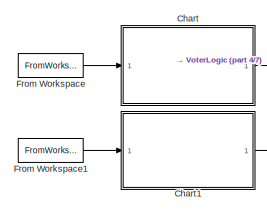
[diagram: root canvas - part 1/7, top left region]
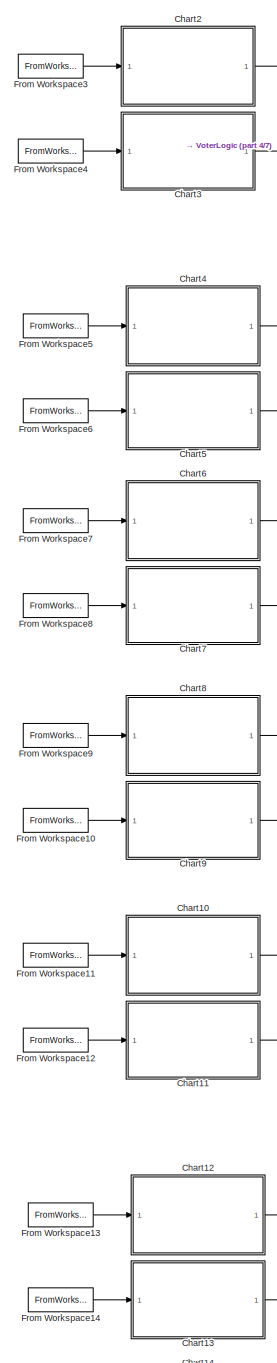
[diagram: root canvas - part 2/7, top left region]
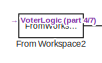
[diagram: root canvas - part 3/7, top center region]
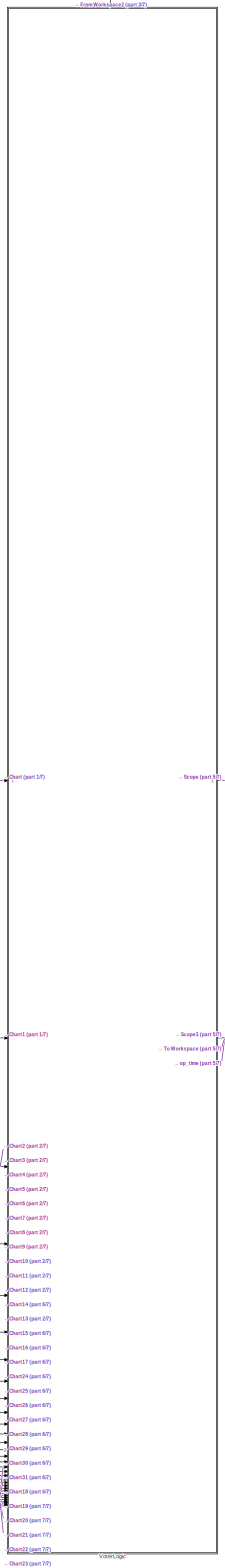
[diagram: root canvas - part 4/7, center side, full height]
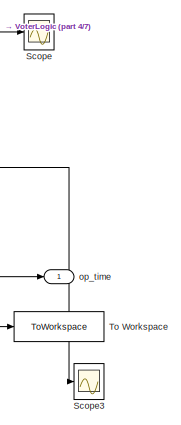
[diagram: root canvas - part 5/7, top right region]
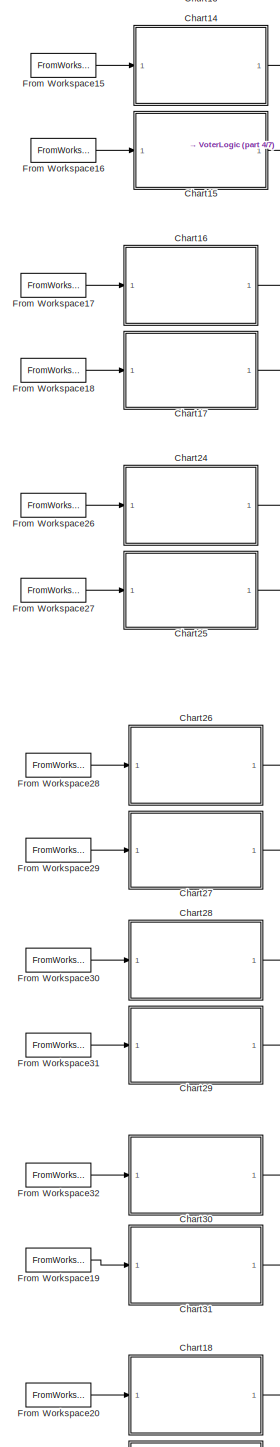
[diagram: root canvas - part 6/7, middle left region]
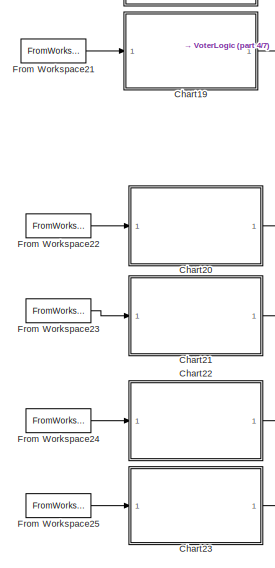
[diagram: root canvas - part 7/7, bottom left region]
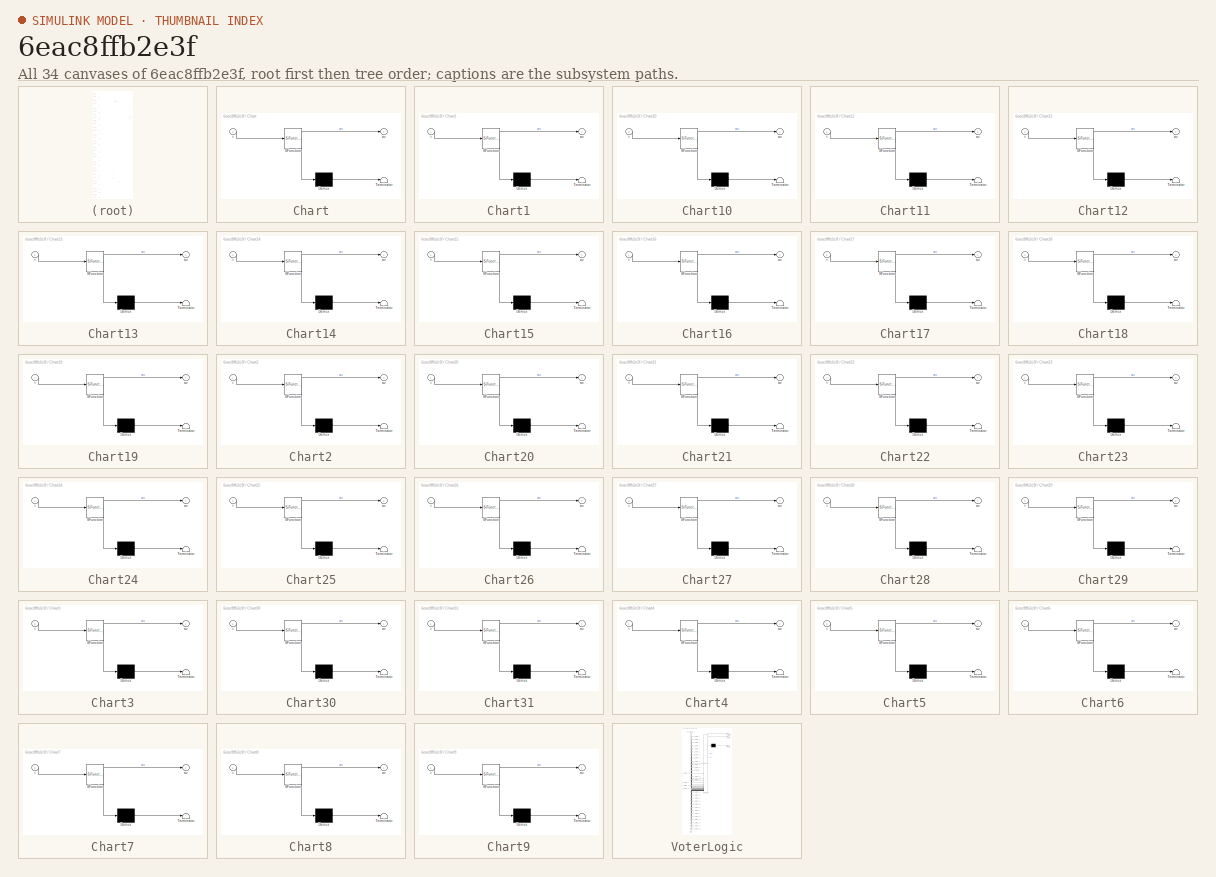
[diagram: thumbnail index - all 34 canvases of the model, root first then tree order]
MODEL slx_6eac8ffb2e3f
KIND model
CONFIG AbsTol = auto
CONFIG EnableMultiTasking = off
CONFIG FixedStep = auto
CONFIG MaxStep = auto
CONFIG MinStep = auto
CONFIG RelTol = 1e-3
CONFIG SampleTimeConstraint = Unconstrained
CONFIG SolverName = VariableStepAuto
CONFIG StartTime = 0.0
CONFIG StopTime = 100.0
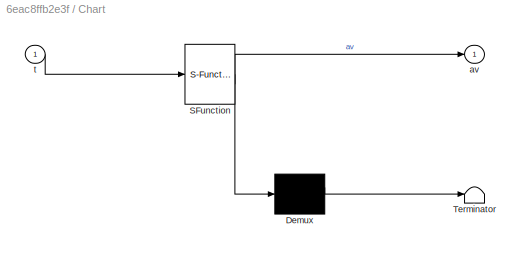
BLOCK [SubSystem] Chart
  ErrorFcn = Stateflow.Translate.translate
  PermitHierarchicalResolution = ExplicitOnly
  SFBlockType = Chart
  TreatAsAtomicUnit = on
BLOCK [Demux] Chart/ Demux 
  Outputs = 1
BLOCK [S-Function] Chart/ SFunction 
  EnableBusSupport = on
  FunctionName = sf_sfun
  PortCounts = [1 2]
  SFcnIsStateOwnerBlock = off
  SFunctionDeploymentMode = off
  Tag = Stateflow S-Function 1
BLOCK [Terminator] Chart/ Terminator 
BLOCK [Outport] Chart/av
BLOCK [Inport] Chart/t
BLOCK [SubSystem] Chart1
  ErrorFcn = Stateflow.Translate.translate
  PermitHierarchicalResolution = ExplicitOnly
  SFBlockType = Chart
  TreatAsAtomicUnit = on
BLOCK [Demux] Chart1/ Demux 
  Outputs = 1
BLOCK [S-Function] Chart1/ SFunction 
  EnableBusSupport = on
  FunctionName = sf_sfun
  PortCounts = [1 2]
  SFcnIsStateOwnerBlock = off
  SFunctionDeploymentMode = off
  Tag = Stateflow S-Function 2
BLOCK [Terminator] Chart1/ Terminator 
BLOCK [Outport] Chart1/av
BLOCK [Inport] Chart1/t
BLOCK [SubSystem] Chart10
  ErrorFcn = Stateflow.Translate.translate
  PermitHierarchicalResolution = ExplicitOnly
  SFBlockType = Chart
  TreatAsAtomicUnit = on
BLOCK [Demux] Chart10/ Demux 
  Outputs = 1
BLOCK [S-Function] Chart10/ SFunction 
  EnableBusSupport = on
  FunctionName = sf_sfun
  PortCounts = [1 2]
  SFcnIsStateOwnerBlock = off
  SFunctionDeploymentMode = off
  Tag = Stateflow S-Function 10
BLOCK [Terminator] Chart10/ Terminator 
BLOCK [Outport] Chart10/av
BLOCK [Inport] Chart10/t
BLOCK [SubSystem] Chart11
  ErrorFcn = Stateflow.Translate.translate
  PermitHierarchicalResolution = ExplicitOnly
  SFBlockType = Chart
  TreatAsAtomicUnit = on
BLOCK [Demux] Chart11/ Demux 
  Outputs = 1
BLOCK [S-Function] Chart11/ SFunction 
  EnableBusSupport = on
  FunctionName = sf_sfun
  PortCounts = [1 2]
  SFcnIsStateOwnerBlock = off
  SFunctionDeploymentMode = off
  Tag = Stateflow S-Function 11
BLOCK [Terminator] Chart11/ Terminator 
BLOCK [Outport] Chart11/av
BLOCK [Inport] Chart11/t
BLOCK [SubSystem] Chart12
  ErrorFcn = Stateflow.Translate.translate
  PermitHierarchicalResolution = ExplicitOnly
  SFBlockType = Chart
  TreatAsAtomicUnit = on
BLOCK [Demux] Chart12/ Demux 
  Outputs = 1
BLOCK [S-Function] Chart12/ SFunction 
  EnableBusSupport = on
  FunctionName = sf_sfun
  PortCounts = [1 2]
  SFcnIsStateOwnerBlock = off
  SFunctionDeploymentMode = off
  Tag = Stateflow S-Function 12
BLOCK [Terminator] Chart12/ Terminator 
BLOCK [Outport] Chart12/av
BLOCK [Inport] Chart12/t
BLOCK [SubSystem] Chart13
  ErrorFcn = Stateflow.Translate.translate
  PermitHierarchicalResolution = ExplicitOnly
  SFBlockType = Chart
  TreatAsAtomicUnit = on
BLOCK [Demux] Chart13/ Demux 
  Outputs = 1
BLOCK [S-Function] Chart13/ SFunction 
  EnableBusSupport = on
  FunctionName = sf_sfun
  PortCounts = [1 2]
  SFcnIsStateOwnerBlock = off
  SFunctionDeploymentMode = off
  Tag = Stateflow S-Function 13
BLOCK [Terminator] Chart13/ Terminator 
BLOCK [Outport] Chart13/av
BLOCK [Inport] Chart13/t
BLOCK [SubSystem] Chart14
  ErrorFcn = Stateflow.Translate.translate
  PermitHierarchicalResolution = ExplicitOnly
  SFBlockType = Chart
  TreatAsAtomicUnit = on
BLOCK [Demux] Chart14/ Demux 
  Outputs = 1
BLOCK [S-Function] Chart14/ SFunction 
  EnableBusSupport = on
  FunctionName = sf_sfun
  PortCounts = [1 2]
  SFcnIsStateOwnerBlock = off
  SFunctionDeploymentMode = off
  Tag = Stateflow S-Function 14
BLOCK [Terminator] Chart14/ Terminator 
BLOCK [Outport] Chart14/av
BLOCK [Inport] Chart14/t
BLOCK [SubSystem] Chart15
  ErrorFcn = Stateflow.Translate.translate
  PermitHierarchicalResolution = ExplicitOnly
  SFBlockType = Chart
  TreatAsAtomicUnit = on
BLOCK [Demux] Chart15/ Demux 
  Outputs = 1
BLOCK [S-Function] Chart15/ SFunction 
  EnableBusSupport = on
  FunctionName = sf_sfun
  PortCounts = [1 2]
  SFcnIsStateOwnerBlock = off
  SFunctionDeploymentMode = off
  Tag = Stateflow S-Function 15
BLOCK [Terminator] Chart15/ Terminator 
BLOCK [Outport] Chart15/av
BLOCK [Inport] Chart15/t
BLOCK [SubSystem] Chart16
  ErrorFcn = Stateflow.Translate.translate
  PermitHierarchicalResolution = ExplicitOnly
  SFBlockType = Chart
  TreatAsAtomicUnit = on
BLOCK [Demux] Chart16/ Demux 
  Outputs = 1
BLOCK [S-Function] Chart16/ SFunction 
  EnableBusSupport = on
  FunctionName = sf_sfun
  PortCounts = [1 2]
  SFcnIsStateOwnerBlock = off
  SFunctionDeploymentMode = off
  Tag = Stateflow S-Function 18
BLOCK [Terminator] Chart16/ Terminator 
BLOCK [Outport] Chart16/av
BLOCK [Inport] Chart16/t
BLOCK [SubSystem] Chart17
  ErrorFcn = Stateflow.Translate.translate
  PermitHierarchicalResolution = ExplicitOnly
  SFBlockType = Chart
  TreatAsAtomicUnit = on
BLOCK [Demux] Chart17/ Demux 
  Outputs = 1
BLOCK [S-Function] Chart17/ SFunction 
  EnableBusSupport = on
  FunctionName = sf_sfun
  PortCounts = [1 2]
  SFcnIsStateOwnerBlock = off
  SFunctionDeploymentMode = off
  Tag = Stateflow S-Function 19
BLOCK [Terminator] Chart17/ Terminator 
BLOCK [Outport] Chart17/av
BLOCK [Inport] Chart17/t
BLOCK [SubSystem] Chart18
  ErrorFcn = Stateflow.Translate.translate
  PermitHierarchicalResolution = ExplicitOnly
  SFBlockType = Chart
  TreatAsAtomicUnit = on
BLOCK [Demux] Chart18/ Demux 
  Outputs = 1
BLOCK [S-Function] Chart18/ SFunction 
  EnableBusSupport = on
  FunctionName = sf_sfun
  PortCounts = [1 2]
  SFcnIsStateOwnerBlock = off
  SFunctionDeploymentMode = off
  Tag = Stateflow S-Function 20
BLOCK [Terminator] Chart18/ Terminator 
BLOCK [Outport] Chart18/av
BLOCK [Inport] Chart18/t
BLOCK [SubSystem] Chart19
  ErrorFcn = Stateflow.Translate.translate
  PermitHierarchicalResolution = ExplicitOnly
  SFBlockType = Chart
  TreatAsAtomicUnit = on
BLOCK [Demux] Chart19/ Demux 
  Outputs = 1
BLOCK [S-Function] Chart19/ SFunction 
  EnableBusSupport = on
  FunctionName = sf_sfun
  PortCounts = [1 2]
  SFcnIsStateOwnerBlock = off
  SFunctionDeploymentMode = off
  Tag = Stateflow S-Function 21
BLOCK [Terminator] Chart19/ Terminator 
BLOCK [Outport] Chart19/av
BLOCK [Inport] Chart19/t
BLOCK [SubSystem] Chart2
  ErrorFcn = Stateflow.Translate.translate
  PermitHierarchicalResolution = ExplicitOnly
  SFBlockType = Chart
  TreatAsAtomicUnit = on
BLOCK [Demux] Chart2/ Demux 
  Outputs = 1
BLOCK [S-Function] Chart2/ SFunction 
  EnableBusSupport = on
  FunctionName = sf_sfun
  PortCounts = [1 2]
  SFcnIsStateOwnerBlock = off
  SFunctionDeploymentMode = off
  Tag = Stateflow S-Function 4
BLOCK [Terminator] Chart2/ Terminator 
BLOCK [Outport] Chart2/av
BLOCK [Inport] Chart2/t
BLOCK [SubSystem] Chart20
  ErrorFcn = Stateflow.Translate.translate
  PermitHierarchicalResolution = ExplicitOnly
  SFBlockType = Chart
  TreatAsAtomicUnit = on
BLOCK [Demux] Chart20/ Demux 
  Outputs = 1
BLOCK [S-Function] Chart20/ SFunction 
  EnableBusSupport = on
  FunctionName = sf_sfun
  PortCounts = [1 2]
  SFcnIsStateOwnerBlock = off
  SFunctionDeploymentMode = off
  Tag = Stateflow S-Function 22
BLOCK [Terminator] Chart20/ Terminator 
BLOCK [Outport] Chart20/av
BLOCK [Inport] Chart20/t
BLOCK [SubSystem] Chart21
  ErrorFcn = Stateflow.Translate.translate
  PermitHierarchicalResolution = ExplicitOnly
  SFBlockType = Chart
  TreatAsAtomicUnit = on
BLOCK [Demux] Chart21/ Demux 
  Outputs = 1
BLOCK [S-Function] Chart21/ SFunction 
  EnableBusSupport = on
  FunctionName = sf_sfun
  PortCounts = [1 2]
  SFcnIsStateOwnerBlock = off
  SFunctionDeploymentMode = off
  Tag = Stateflow S-Function 23
BLOCK [Terminator] Chart21/ Terminator 
BLOCK [Outport] Chart21/av
BLOCK [Inport] Chart21/t
BLOCK [SubSystem] Chart22
  ErrorFcn = Stateflow.Translate.translate
  PermitHierarchicalResolution = ExplicitOnly
  SFBlockType = Chart
  TreatAsAtomicUnit = on
BLOCK [Demux] Chart22/ Demux 
  Outputs = 1
BLOCK [S-Function] Chart22/ SFunction 
  EnableBusSupport = on
  FunctionName = sf_sfun
  PortCounts = [1 2]
  SFcnIsStateOwnerBlock = off
  SFunctionDeploymentMode = off
  Tag = Stateflow S-Function 24
BLOCK [Terminator] Chart22/ Terminator 
BLOCK [Outport] Chart22/av
BLOCK [Inport] Chart22/t
BLOCK [SubSystem] Chart23
  ErrorFcn = Stateflow.Translate.translate
  PermitHierarchicalResolution = ExplicitOnly
  SFBlockType = Chart
  TreatAsAtomicUnit = on
BLOCK [Demux] Chart23/ Demux 
  Outputs = 1
BLOCK [S-Function] Chart23/ SFunction 
  EnableBusSupport = on
  FunctionName = sf_sfun
  PortCounts = [1 2]
  SFcnIsStateOwnerBlock = off
  SFunctionDeploymentMode = off
  Tag = Stateflow S-Function 25
BLOCK [Terminator] Chart23/ Terminator 
BLOCK [Outport] Chart23/av
BLOCK [Inport] Chart23/t
BLOCK [SubSystem] Chart24
  ErrorFcn = Stateflow.Translate.translate
  PermitHierarchicalResolution = ExplicitOnly
  SFBlockType = Chart
  TreatAsAtomicUnit = on
BLOCK [Demux] Chart24/ Demux 
  Outputs = 1
BLOCK [S-Function] Chart24/ SFunction 
  EnableBusSupport = on
  FunctionName = sf_sfun
  PortCounts = [1 2]
  SFcnIsStateOwnerBlock = off
  SFunctionDeploymentMode = off
  Tag = Stateflow S-Function 26
BLOCK [Terminator] Chart24/ Terminator 
BLOCK [Outport] Chart24/av
BLOCK [Inport] Chart24/t
BLOCK [SubSystem] Chart25
  ErrorFcn = Stateflow.Translate.translate
  PermitHierarchicalResolution = ExplicitOnly
  SFBlockType = Chart
  TreatAsAtomicUnit = on
BLOCK [Demux] Chart25/ Demux 
  Outputs = 1
BLOCK [S-Function] Chart25/ SFunction 
  EnableBusSupport = on
  FunctionName = sf_sfun
  PortCounts = [1 2]
  SFcnIsStateOwnerBlock = off
  SFunctionDeploymentMode = off
  Tag = Stateflow S-Function 27
BLOCK [Terminator] Chart25/ Terminator 
BLOCK [Outport] Chart25/av
BLOCK [Inport] Chart25/t
BLOCK [SubSystem] Chart26
  ErrorFcn = Stateflow.Translate.translate
  PermitHierarchicalResolution = ExplicitOnly
  SFBlockType = Chart
  TreatAsAtomicUnit = on
BLOCK [Demux] Chart26/ Demux 
  Outputs = 1
BLOCK [S-Function] Chart26/ SFunction 
  EnableBusSupport = on
  FunctionName = sf_sfun
  PortCounts = [1 2]
  SFcnIsStateOwnerBlock = off
  SFunctionDeploymentMode = off
  Tag = Stateflow S-Function 28
BLOCK [Terminator] Chart26/ Terminator 
BLOCK [Outport] Chart26/av
BLOCK [Inport] Chart26/t
BLOCK [SubSystem] Chart27
  ErrorFcn = Stateflow.Translate.translate
  PermitHierarchicalResolution = ExplicitOnly
  SFBlockType = Chart
  TreatAsAtomicUnit = on
BLOCK [Demux] Chart27/ Demux 
  Outputs = 1
BLOCK [S-Function] Chart27/ SFunction 
  EnableBusSupport = on
  FunctionName = sf_sfun
  PortCounts = [1 2]
  SFcnIsStateOwnerBlock = off
  SFunctionDeploymentMode = off
  Tag = Stateflow S-Function 29
BLOCK [Terminator] Chart27/ Terminator 
BLOCK [Outport] Chart27/av
BLOCK [Inport] Chart27/t
BLOCK [SubSystem] Chart28
  ErrorFcn = Stateflow.Translate.translate
  PermitHierarchicalResolution = ExplicitOnly
  SFBlockType = Chart
  TreatAsAtomicUnit = on
BLOCK [Demux] Chart28/ Demux 
  Outputs = 1
BLOCK [S-Function] Chart28/ SFunction 
  EnableBusSupport = on
  FunctionName = sf_sfun
  PortCounts = [1 2]
  SFcnIsStateOwnerBlock = off
  SFunctionDeploymentMode = off
  Tag = Stateflow S-Function 30
BLOCK [Terminator] Chart28/ Terminator 
BLOCK [Outport] Chart28/av
BLOCK [Inport] Chart28/t
BLOCK [SubSystem] Chart29
  ErrorFcn = Stateflow.Translate.translate
  PermitHierarchicalResolution = ExplicitOnly
  SFBlockType = Chart
  TreatAsAtomicUnit = on
BLOCK [Demux] Chart29/ Demux 
  Outputs = 1
BLOCK [S-Function] Chart29/ SFunction 
  EnableBusSupport = on
  FunctionName = sf_sfun
  PortCounts = [1 2]
  SFcnIsStateOwnerBlock = off
  SFunctionDeploymentMode = off
  Tag = Stateflow S-Function 31
BLOCK [Terminator] Chart29/ Terminator 
BLOCK [Outport] Chart29/av
BLOCK [Inport] Chart29/t
BLOCK [SubSystem] Chart3
  ErrorFcn = Stateflow.Translate.translate
  PermitHierarchicalResolution = ExplicitOnly
  SFBlockType = Chart
  TreatAsAtomicUnit = on
BLOCK [Demux] Chart3/ Demux 
  Outputs = 1
BLOCK [S-Function] Chart3/ SFunction 
  EnableBusSupport = on
  FunctionName = sf_sfun
  PortCounts = [1 2]
  SFcnIsStateOwnerBlock = off
  SFunctionDeploymentMode = off
  Tag = Stateflow S-Function 5
BLOCK [Terminator] Chart3/ Terminator 
BLOCK [Outport] Chart3/av
BLOCK [Inport] Chart3/t
BLOCK [SubSystem] Chart30
  ErrorFcn = Stateflow.Translate.translate
  PermitHierarchicalResolution = ExplicitOnly
  SFBlockType = Chart
  TreatAsAtomicUnit = on
BLOCK [Demux] Chart30/ Demux 
  Outputs = 1
BLOCK [S-Function] Chart30/ SFunction 
  EnableBusSupport = on
  FunctionName = sf_sfun
  PortCounts = [1 2]
  SFcnIsStateOwnerBlock = off
  SFunctionDeploymentMode = off
  Tag = Stateflow S-Function 32
BLOCK [Terminator] Chart30/ Terminator 
BLOCK [Outport] Chart30/av
BLOCK [Inport] Chart30/t
BLOCK [SubSystem] Chart31
  ErrorFcn = Stateflow.Translate.translate
  PermitHierarchicalResolution = ExplicitOnly
  SFBlockType = Chart
  TreatAsAtomicUnit = on
BLOCK [Demux] Chart31/ Demux 
  Outputs = 1
BLOCK [S-Function] Chart31/ SFunction 
  EnableBusSupport = on
  FunctionName = sf_sfun
  PortCounts = [1 2]
  SFcnIsStateOwnerBlock = off
  SFunctionDeploymentMode = off
  Tag = Stateflow S-Function 33
BLOCK [Terminator] Chart31/ Terminator 
BLOCK [Outport] Chart31/av
BLOCK [Inport] Chart31/t
BLOCK [SubSystem] Chart4
  ErrorFcn = Stateflow.Translate.translate
  PermitHierarchicalResolution = ExplicitOnly
  SFBlockType = Chart
  TreatAsAtomicUnit = on
BLOCK [Demux] Chart4/ Demux 
  Outputs = 1
BLOCK [S-Function] Chart4/ SFunction 
  EnableBusSupport = on
  FunctionName = sf_sfun
  PortCounts = [1 2]
  SFcnIsStateOwnerBlock = off
  SFunctionDeploymentMode = off
  Tag = Stateflow S-Function 6
BLOCK [Terminator] Chart4/ Terminator 
BLOCK [Outport] Chart4/av
BLOCK [Inport] Chart4/t
BLOCK [SubSystem] Chart5
  ErrorFcn = Stateflow.Translate.translate
  PermitHierarchicalResolution = ExplicitOnly
  SFBlockType = Chart
  TreatAsAtomicUnit = on
BLOCK [Demux] Chart5/ Demux 
  Outputs = 1
BLOCK [S-Function] Chart5/ SFunction 
  EnableBusSupport = on
  FunctionName = sf_sfun
  PortCounts = [1 2]
  SFcnIsStateOwnerBlock = off
  SFunctionDeploymentMode = off
  Tag = Stateflow S-Function 7
BLOCK [Terminator] Chart5/ Terminator 
BLOCK [Outport] Chart5/av
BLOCK [Inport] Chart5/t
BLOCK [SubSystem] Chart6
  ErrorFcn = Stateflow.Translate.translate
  PermitHierarchicalResolution = ExplicitOnly
  SFBlockType = Chart
  TreatAsAtomicUnit = on
BLOCK [Demux] Chart6/ Demux 
  Outputs = 1
BLOCK [S-Function] Chart6/ SFunction 
  EnableBusSupport = on
  FunctionName = sf_sfun
  PortCounts = [1 2]
  SFcnIsStateOwnerBlock = off
  SFunctionDeploymentMode = off
  Tag = Stateflow S-Function 8
BLOCK [Terminator] Chart6/ Terminator 
BLOCK [Outport] Chart6/av
BLOCK [Inport] Chart6/t
BLOCK [SubSystem] Chart7
  ErrorFcn = Stateflow.Translate.translate
  PermitHierarchicalResolution = ExplicitOnly
  SFBlockType = Chart
  TreatAsAtomicUnit = on
BLOCK [Demux] Chart7/ Demux 
  Outputs = 1
BLOCK [S-Function] Chart7/ SFunction 
  EnableBusSupport = on
  FunctionName = sf_sfun
  PortCounts = [1 2]
  SFcnIsStateOwnerBlock = off
  SFunctionDeploymentMode = off
  Tag = Stateflow S-Function 9
BLOCK [Terminator] Chart7/ Terminator 
BLOCK [Outport] Chart7/av
BLOCK [Inport] Chart7/t
BLOCK [SubSystem] Chart8
  ErrorFcn = Stateflow.Translate.translate
  PermitHierarchicalResolution = ExplicitOnly
  SFBlockType = Chart
  TreatAsAtomicUnit = on
BLOCK [Demux] Chart8/ Demux 
  Outputs = 1
BLOCK [S-Function] Chart8/ SFunction 
  EnableBusSupport = on
  FunctionName = sf_sfun
  PortCounts = [1 2]
  SFcnIsStateOwnerBlock = off
  SFunctionDeploymentMode = off
  Tag = Stateflow S-Function 16
BLOCK [Terminator] Chart8/ Terminator 
BLOCK [Outport] Chart8/av
BLOCK [Inport] Chart8/t
BLOCK [SubSystem] Chart9
  ErrorFcn = Stateflow.Translate.translate
  PermitHierarchicalResolution = ExplicitOnly
  SFBlockType = Chart
  TreatAsAtomicUnit = on
BLOCK [Demux] Chart9/ Demux 
  Outputs = 1
BLOCK [S-Function] Chart9/ SFunction 
  EnableBusSupport = on
  FunctionName = sf_sfun
  PortCounts = [1 2]
  SFcnIsStateOwnerBlock = off
  SFunctionDeploymentMode = off
  Tag = Stateflow S-Function 17
BLOCK [Terminator] Chart9/ Terminator 
BLOCK [Outport] Chart9/av
BLOCK [Inport] Chart9/t
BLOCK [FromWorkspace] From Workspace
  SampleTime = -1
  VariableName = failtime_1
BLOCK [FromWorkspace] From Workspace1
  SampleTime = -1
  VariableName = failtime_2
BLOCK [FromWorkspace] From Workspace10
  SampleTime = -1
  VariableName = failtime_11
BLOCK [FromWorkspace] From Workspace11
  SampleTime = -1
  VariableName = failtime_12
BLOCK [FromWorkspace] From Workspace12
  SampleTime = -1
  VariableName = failtime_13
BLOCK [FromWorkspace] From Workspace13
  SampleTime = -1
  VariableName = failtime_14
BLOCK [FromWorkspace] From Workspace14
  SampleTime = -1
  VariableName = failtime_15
BLOCK [FromWorkspace] From Workspace15
  SampleTime = -1
  VariableName = failtime_16
BLOCK [FromWorkspace] From Workspace16
  SampleTime = -1
  VariableName = failtime_17
BLOCK [FromWorkspace] From Workspace17
  SampleTime = -1
  VariableName = failtime_18
BLOCK [FromWorkspace] From Workspace18
  SampleTime = -1
  VariableName = failtime_19
BLOCK [FromWorkspace] From Workspace19
  SampleTime = -1
  VariableName = failtime_27
BLOCK [FromWorkspace] From Workspace2
  SampleTime = -1
  VariableName = failtime_3
BLOCK [FromWorkspace] From Workspace20
  SampleTime = -1
  VariableName = failtime_28
BLOCK [FromWorkspace] From Workspace21
  SampleTime = -1
  VariableName = failtime_29
BLOCK [FromWorkspace] From Workspace22
  SampleTime = -1
  VariableName = failtime_30
BLOCK [FromWorkspace] From Workspace23
  SampleTime = -1
  VariableName = failtime_31
BLOCK [FromWorkspace] From Workspace24
  SampleTime = -1
  VariableName = failtime_32
BLOCK [FromWorkspace] From Workspace25
  SampleTime = -1
  VariableName = failtime_33
BLOCK [FromWorkspace] From Workspace26
  SampleTime = -1
  VariableName = failtime_20
BLOCK [FromWorkspace] From Workspace27
  SampleTime = -1
  VariableName = failtime_21
BLOCK [FromWorkspace] From Workspace28
  SampleTime = -1
  VariableName = failtime_22
BLOCK [FromWorkspace] From Workspace29
  SampleTime = -1
  VariableName = failtime_23
BLOCK [FromWorkspace] From Workspace3
  SampleTime = -1
  VariableName = failtime_5
BLOCK [FromWorkspace] From Workspace30
  SampleTime = -1
  VariableName = failtime_24
BLOCK [FromWorkspace] From Workspace31
  SampleTime = -1
  VariableName = failtime_25
BLOCK [FromWorkspace] From Workspace32
  SampleTime = -1
  VariableName = failtime_26
BLOCK [FromWorkspace] From Workspace4
  SampleTime = -1
  VariableName = failtime_4
BLOCK [FromWorkspace] From Workspace5
  SampleTime = -1
  VariableName = failtime_6
BLOCK [FromWorkspace] From Workspace6
  SampleTime = -1
  VariableName = failtime_7
BLOCK [FromWorkspace] From Workspace7
  SampleTime = -1
  VariableName = failtime_8
BLOCK [FromWorkspace] From Workspace8
  SampleTime = -1
  VariableName = failtime_9
BLOCK [FromWorkspace] From Workspace9
  SampleTime = -1
  VariableName = failtime_10
BLOCK [Scope] Scope
  Floating = off
  NumInputPorts = 1
  ScopeSpecificationString = Simulink.scopes.TimeScopeBlockCfg('CurrentConfiguration', extmgr.ConfigurationSet(extmgr.Configuration('Core','General UI',true),extmgr.Configuration('Core','Source UI',true),extmgr.Configuration('Sources','WiredSimulink',true),extmgr.Configuration('Visuals','Time Domain',true,'SerializedDisplays',{struct('MinYLimReal','-0.125','MaxYLimReal','1.125','YLabelReal','','MinYLimMag','0.00000','MaxYLimM...<+1361ch>
BLOCK [Scope] Scope3
  Floating = off
  NumInputPorts = 1
  ScopeSpecificationString = Simulink.scopes.TimeScopeBlockCfg('CurrentConfiguration', extmgr.ConfigurationSet(extmgr.Configuration('Core','General UI',true),extmgr.Configuration('Core','Source UI',true),extmgr.Configuration('Sources','WiredSimulink',true,'DataLoggingVariableName','ScopeData1'),extmgr.Configuration('Visuals','Time Domain',true,'SerializedDisplays',{struct('MinYLimReal','-2.97141','MaxYLimReal','26.7427','YLab...<+1412ch>
BLOCK [ToWorkspace] To Workspace
  FixptAsFi = on
  MaxDataPoints = inf
  SampleTime = -1
  SaveFormat = Timeseries
  VariableName = op_time
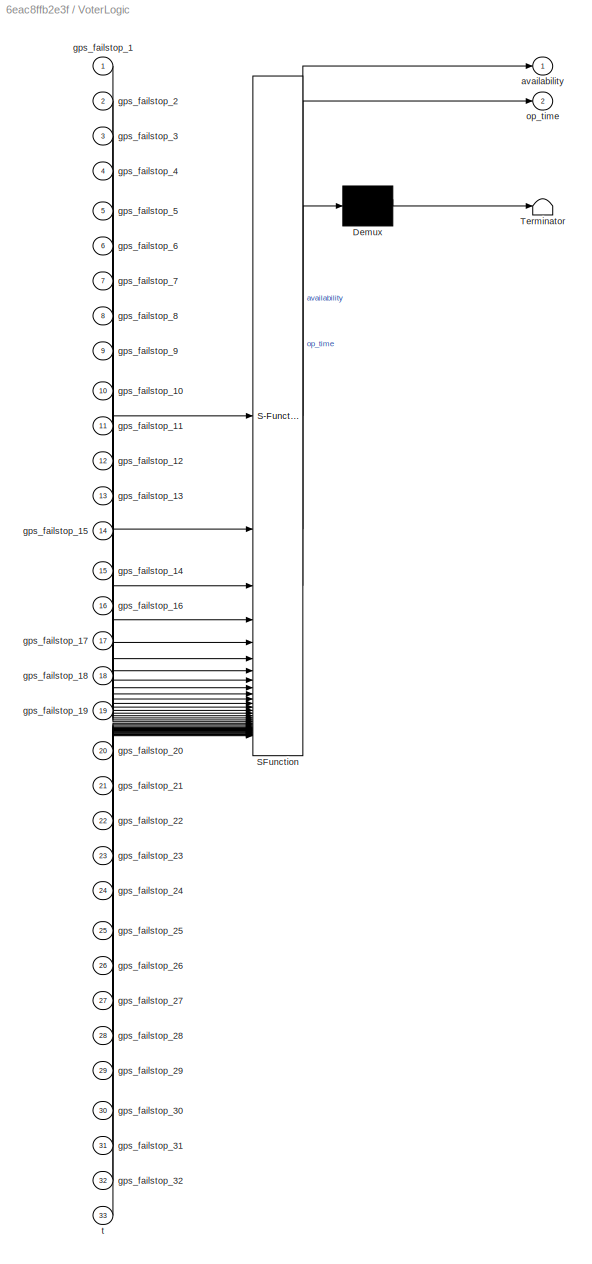
BLOCK [SubSystem] VoterLogic
  ErrorFcn = Stateflow.Translate.translate
  PermitHierarchicalResolution = ExplicitOnly
  PortSchema = {"entries":[{"content":{"sides":[{"content":{"connectorIds":["In1","In2","In3","In4","In5","In6","In7","In8","In9","In10","In11","In12","In13","In15","In14","In16","In17","In18","In19","In20","In21","In22","In23","In24","In25","In26","In27","In28","In29","In30","In31","In32"]},"type":"ConnectorPlacement.EquallySpacedRectSide","uuid":"b24c2d94-3c9d-4369-b965-d1338d6762d5"},{"content":{"connectorIds...<+462ch>
  SFBlockType = Chart
  TreatAsAtomicUnit = on
BLOCK [Demux] VoterLogic/ Demux 
  Outputs = 1
BLOCK [S-Function] VoterLogic/ SFunction 
  EnableBusSupport = on
  FunctionName = sf_sfun
  PortCounts = [33 3]
  SFcnIsStateOwnerBlock = off
  SFunctionDeploymentMode = off
  Tag = Stateflow S-Function 3
BLOCK [Terminator] VoterLogic/ Terminator 
BLOCK [Outport] VoterLogic/availability
BLOCK [Inport] VoterLogic/gps_failstop_1
BLOCK [Inport] VoterLogic/gps_failstop_10
  Port = 10
BLOCK [Inport] VoterLogic/gps_failstop_11
  Port = 11
BLOCK [Inport] VoterLogic/gps_failstop_12
  Port = 12
BLOCK [Inport] VoterLogic/gps_failstop_13
  Port = 13
BLOCK [Inport] VoterLogic/gps_failstop_14
  Port = 15
BLOCK [Inport] VoterLogic/gps_failstop_15
  Port = 14
BLOCK [Inport] VoterLogic/gps_failstop_16
  Port = 16
BLOCK [Inport] VoterLogic/gps_failstop_17
  Port = 17
BLOCK [Inport] VoterLogic/gps_failstop_18
  Port = 18
BLOCK [Inport] VoterLogic/gps_failstop_19
  Port = 19
BLOCK [Inport] VoterLogic/gps_failstop_2
  Port = 2
BLOCK [Inport] VoterLogic/gps_failstop_20
  Port = 20
BLOCK [Inport] VoterLogic/gps_failstop_21
  Port = 21
BLOCK [Inport] VoterLogic/gps_failstop_22
  Port = 22
BLOCK [Inport] VoterLogic/gps_failstop_23
  Port = 23
BLOCK [Inport] VoterLogic/gps_failstop_24
  Port = 24
BLOCK [Inport] VoterLogic/gps_failstop_25
  Port = 25
BLOCK [Inport] VoterLogic/gps_failstop_26
  Port = 26
BLOCK [Inport] VoterLogic/gps_failstop_27
  Port = 27
BLOCK [Inport] VoterLogic/gps_failstop_28
  Port = 28
BLOCK [Inport] VoterLogic/gps_failstop_29
  Port = 29
BLOCK [Inport] VoterLogic/gps_failstop_3
  Port = 3
BLOCK [Inport] VoterLogic/gps_failstop_30
  Port = 30
BLOCK [Inport] VoterLogic/gps_failstop_31
  Port = 31
BLOCK [Inport] VoterLogic/gps_failstop_32
  Port = 32
BLOCK [Inport] VoterLogic/gps_failstop_4
  Port = 4
BLOCK [Inport] VoterLogic/gps_failstop_5
  Port = 5
BLOCK [Inport] VoterLogic/gps_failstop_6
  Port = 6
BLOCK [Inport] VoterLogic/gps_failstop_7
  Port = 7
BLOCK [Inport] VoterLogic/gps_failstop_8
  Port = 8
BLOCK [Inport] VoterLogic/gps_failstop_9
  Port = 9
BLOCK [Outport] VoterLogic/op_time
  Port = 2
BLOCK [Inport] VoterLogic/t
  Port = 33
BLOCK [Outport] op_time
LINE Chart10:1 -> VoterLogic:11
LINE Chart11:1 -> VoterLogic:12
LINE Chart12:1 -> VoterLogic:13
LINE Chart13:1 -> VoterLogic:15
LINE Chart14:1 -> VoterLogic:14
LINE Chart15:1 -> VoterLogic:16
LINE Chart16:1 -> VoterLogic:17
LINE Chart17:1 -> VoterLogic:18
LINE Chart18:1 -> VoterLogic:27
LINE Chart19:1 -> VoterLogic:28
LINE Chart1:1 -> VoterLogic:2
LINE Chart20:1 -> VoterLogic:29
LINE Chart21:1 -> VoterLogic:30
LINE Chart22:1 -> VoterLogic:31
LINE Chart23:1 -> VoterLogic:32
LINE Chart24:1 -> VoterLogic:19
LINE Chart25:1 -> VoterLogic:20
LINE Chart26:1 -> VoterLogic:21
LINE Chart27:1 -> VoterLogic:22
LINE Chart28:1 -> VoterLogic:23
LINE Chart29:1 -> VoterLogic:24
LINE Chart2:1 -> VoterLogic:3
LINE Chart30:1 -> VoterLogic:25
LINE Chart31:1 -> VoterLogic:26
LINE Chart3:1 -> VoterLogic:4
LINE Chart4:1 -> VoterLogic:5
LINE Chart5:1 -> VoterLogic:6
LINE Chart6:1 -> VoterLogic:7
LINE Chart7:1 -> VoterLogic:8
LINE Chart8:1 -> VoterLogic:9
LINE Chart9:1 -> VoterLogic:10
LINE Chart:1 -> VoterLogic:1
LINE From Workspace10:1 -> Chart9:1
LINE From Workspace11:1 -> Chart10:1
LINE From Workspace12:1 -> Chart11:1
LINE From Workspace13:1 -> Chart12:1
LINE From Workspace14:1 -> Chart13:1
LINE From Workspace15:1 -> Chart14:1
LINE From Workspace16:1 -> Chart15:1
LINE From Workspace17:1 -> Chart16:1
LINE From Workspace18:1 -> Chart17:1
LINE From Workspace19:1 -> Chart31:1
LINE From Workspace1:1 -> Chart1:1
LINE From Workspace20:1 -> Chart18:1
LINE From Workspace21:1 -> Chart19:1
LINE From Workspace22:1 -> Chart20:1
LINE From Workspace23:1 -> Chart21:1
LINE From Workspace24:1 -> Chart22:1
LINE From Workspace25:1 -> Chart23:1
LINE From Workspace26:1 -> Chart24:1
LINE From Workspace27:1 -> Chart25:1
LINE From Workspace28:1 -> Chart26:1
LINE From Workspace29:1 -> Chart27:1
LINE From Workspace2:1 -> VoterLogic:33
LINE From Workspace30:1 -> Chart28:1
LINE From Workspace31:1 -> Chart29:1
LINE From Workspace32:1 -> Chart30:1
LINE From Workspace3:1 -> Chart2:1
LINE From Workspace4:1 -> Chart3:1
LINE From Workspace5:1 -> Chart4:1
LINE From Workspace6:1 -> Chart5:1
LINE From Workspace7:1 -> Chart6:1
LINE From Workspace8:1 -> Chart7:1
LINE From Workspace9:1 -> Chart8:1
LINE From Workspace:1 -> Chart:1
LINE VoterLogic:1 -> Scope:1
NET VoterLogic:2 -> Scope3:1, To Workspace:1, op_time:1
note: NET lines group one-source signal fan-out (src -> all destinations, sorted); 1:1 wires keep LINE
CHART Chart states=2 transitions=2
  STATE_LABEL 'operational\nentry:\nav=1'
  STATE_LABEL 'failstop\nentry:\nav=0;'
CHART Chart1 states=2 transitions=2
  STATE_LABEL 'operational\nentry:\nav=1;'
  STATE_LABEL 'failstop\nentry:\nav=0;'
CHART VoterLogic states=3 transitions=4
  STATE_LABEL 'reg2'
  STATE_LABEL 'Operation\nexit:\nop_time=temporalCount(sec)'
  STATE_LABEL 'Failstop\nentry: availability=0;\n'
  STATE_LABEL '{availability=1}'
  STATE_LABEL 'after(t,sec)'
  STATE_LABEL '[gps_failstop_1==0 && gps_failstop_2==0 && gps_failstop_3==0 && gps_failstop_4==0 && gps_failstop_5==0 && gps_failstop_6==0 && gps_failstop_7==0 && gps_failstop_8==0 && gps_failstop_9==0 && gps_failstop_10==0 && gps_failstop_11==0 && gps_failstop_12==0 && gps_failstop_13==0 && gps_failstop_14==0 && gps_failstop_15==0 && gps_failstop_16==0 && gps_failstop_17==0 && gps_failstop_18==0 && gps_failstop...<+293ch>'
  STATE_LABEL 'Operation\nexit:\nop_time=temporalCount(sec)'
  STATE_LABEL 'Failstop\nentry: availability=0;\n'
CHART Chart2 states=2 transitions=2
  STATE_LABEL 'operational\nentry:\nav=1'
  STATE_LABEL 'failstop\nentry:\nav=0;'
CHART Chart3 states=2 transitions=2
  STATE_LABEL 'operational\nentry:\nav=1;'
  STATE_LABEL 'failstop\nentry:\nav=0;'
CHART Chart4 states=2 transitions=2
  STATE_LABEL 'operational\nentry:\nav=1'
  STATE_LABEL 'failstop\nentry:\nav=0;'
CHART Chart5 states=2 transitions=2
  STATE_LABEL 'operational\nentry:\nav=1;'
  STATE_LABEL 'failstop\nentry:\nav=0;'
CHART Chart6 states=2 transitions=2
  STATE_LABEL 'operational\nentry:\nav=1'
  STATE_LABEL 'failstop\nentry:\nav=0;'
CHART Chart7 states=2 transitions=2
  STATE_LABEL 'operational\nentry:\nav=1;'
  STATE_LABEL 'failstop\nentry:\nav=0;'
CHART Chart10 states=2 transitions=2
  STATE_LABEL 'operational\nentry:\nav=1'
  STATE_LABEL 'failstop\nentry:\nav=0;'
CHART Chart11 states=2 transitions=2
  STATE_LABEL 'operational\nentry:\nav=1;'
  STATE_LABEL 'failstop\nentry:\nav=0;'
CHART Chart12 states=2 transitions=2
  STATE_LABEL 'operational\nentry:\nav=1'
  STATE_LABEL 'failstop\nentry:\nav=0;'
CHART Chart13 states=2 transitions=2
  STATE_LABEL 'operational\nentry:\nav=1;'
  STATE_LABEL 'failstop\nentry:\nav=0;'
CHART Chart14 states=2 transitions=2
  STATE_LABEL 'operational\nentry:\nav=1'
  STATE_LABEL 'failstop\nentry:\nav=0;'
CHART Chart15 states=2 transitions=2
  STATE_LABEL 'operational\nentry:\nav=1;'
  STATE_LABEL 'failstop\nentry:\nav=0;'
CHART Chart8 states=2 transitions=2
  STATE_LABEL 'operational\nentry:\nav=1'
  STATE_LABEL 'failstop\nentry:\nav=0;'
CHART Chart9 states=2 transitions=2
  STATE_LABEL 'operational\nentry:\nav=1;'
  STATE_LABEL 'failstop\nentry:\nav=0;'
CHART Chart16 states=2 transitions=2
  STATE_LABEL 'operational\nentry:\nav=1'
  STATE_LABEL 'failstop\nentry:\nav=0;'
CHART Chart17 states=2 transitions=2
  STATE_LABEL 'operational\nentry:\nav=1;'
  STATE_LABEL 'failstop\nentry:\nav=0;'
CHART Chart18 states=2 transitions=2
  STATE_LABEL 'operational\nentry:\nav=1'
  STATE_LABEL 'failstop\nentry:\nav=0;'
CHART Chart19 states=2 transitions=2
  STATE_LABEL 'operational\nentry:\nav=1;'
  STATE_LABEL 'failstop\nentry:\nav=0;'
CHART Chart20 states=2 transitions=2
  STATE_LABEL 'operational\nentry:\nav=1'
  STATE_LABEL 'failstop\nentry:\nav=0;'
CHART Chart21 states=2 transitions=2
  STATE_LABEL 'operational\nentry:\nav=1;'
  STATE_LABEL 'failstop\nentry:\nav=0;'
CHART Chart22 states=2 transitions=2
  STATE_LABEL 'operational\nentry:\nav=1'
  STATE_LABEL 'failstop\nentry:\nav=0;'
CHART Chart23 states=2 transitions=2
  STATE_LABEL 'operational\nentry:\nav=1;'
  STATE_LABEL 'failstop\nentry:\nav=0;'
CHART Chart24 states=2 transitions=2
  STATE_LABEL 'operational\nentry:\nav=1'
  STATE_LABEL 'failstop\nentry:\nav=0;'
CHART Chart25 states=2 transitions=2
  STATE_LABEL 'operational\nentry:\nav=1;'
  STATE_LABEL 'failstop\nentry:\nav=0;'
CHART Chart26 states=2 transitions=2
  STATE_LABEL 'operational\nentry:\nav=1'
  STATE_LABEL 'failstop\nentry:\nav=0;'
CHART Chart27 states=2 transitions=2
  STATE_LABEL 'operational\nentry:\nav=1;'
  STATE_LABEL 'failstop\nentry:\nav=0;'
CHART Chart28 states=2 transitions=2
  STATE_LABEL 'operational\nentry:\nav=1'
  STATE_LABEL 'failstop\nentry:\nav=0;'
CHART Chart29 states=2 transitions=2
  STATE_LABEL 'operational\nentry:\nav=1;'
  STATE_LABEL 'failstop\nentry:\nav=0;'
CHART Chart30 states=2 transitions=2
  STATE_LABEL 'operational\nentry:\nav=1'
  STATE_LABEL 'failstop\nentry:\nav=0;'
CHART Chart31 states=2 transitions=2
  STATE_LABEL 'operational\nentry:\nav=1;'
  STATE_LABEL 'failstop\nentry:\nav=0;'
CHART  states=0 transitions=0
CHART  states=0 transitions=0
CHART  states=0 transitions=0
CHART  states=0 transitions=0
CHART  states=0 transitions=0
CHART  states=0 transitions=0
CHART  states=0 transitions=0
CHART  states=0 transitions=0
CHART  states=0 transitions=0
CHART  states=0 transitions=0
CHART  states=0 transitions=0
CHART  states=0 transitions=0
CHART  states=0 transitions=0
CHART  states=0 transitions=0
CHART  states=0 transitions=0
CHART  states=0 transitions=0
CHART  states=0 transitions=0
CHART  states=0 transitions=0
CHART  states=0 transitions=0
CHART  states=0 transitions=0
CHART  states=0 transitions=0
CHART  states=0 transitions=0
CHART  states=0 transitions=0
CHART  states=0 transitions=0
CHART  states=0 transitions=0
CHART  states=0 transitions=0
CHART  states=0 transitions=0
CHART  states=0 transitions=0
CHART  states=0 transitions=0
CHART  states=0 transitions=0
CHART  states=0 transitions=0
CHART  states=0 transitions=0
CHART  states=0 transitions=0
